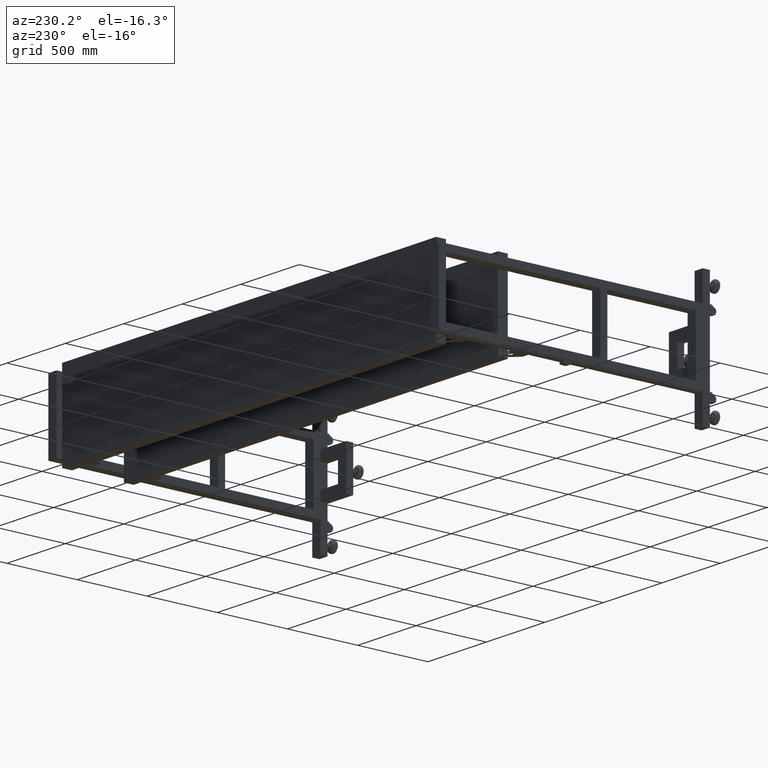
[diagram: clean part render]
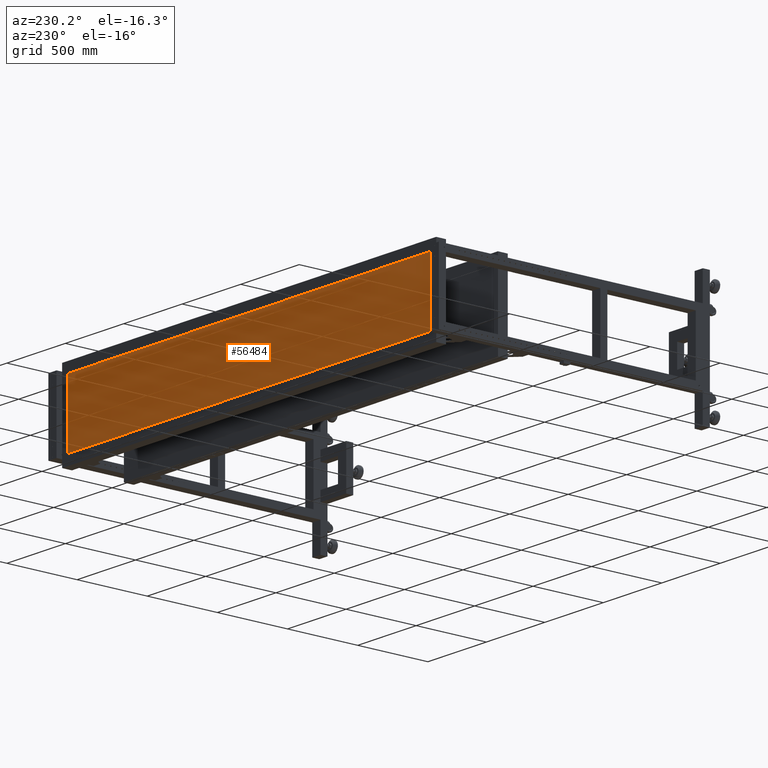
[diagram: same view with one face highlighted and labeled with its STEP entity id]
A machine part, auxiliary view. The second image highlights one B-rep face of the part: STEP entity #56484.
In plain terms, the highlighted planar face has unit normal (-0, 1, 0).
Its self-contained STEP definition (entity closure, byte-faithful):
#6050 = ORIENTED_EDGE ( 'NONE', *, *, #55783, .F. ) ;
#6225 = LINE ( 'NONE', #56981, #8064 ) ;
#8064 = VECTOR ( 'NONE', #13571, 1000.000000000000000 ) ;
#8396 = DIRECTION ( 'NONE',  ( -1.000000000000000000, -4.543257172554223644E-16, 0.000000000000000000 ) ) ;
#13216 = VECTOR ( 'NONE', #14175, 1000.000000000000000 ) ;
#13571 = DIRECTION ( 'NONE',  ( 0.000000000000000000, -1.000000000000000472E-15, 1.000000000000000000 ) ) ;
#14175 = DIRECTION ( 'NONE',  ( 4.543257172554225407E-31, -1.000000000000000472E-15, 1.000000000000000000 ) ) ;
#17271 = FACE_OUTER_BOUND ( 'NONE', #30572, .T. ) ;
#18692 = EDGE_CURVE ( 'NONE', #44897, #68761, #6225, .T. ) ;
#19060 = CARTESIAN_POINT ( 'NONE',  ( -516.6624874371854048, 996.9410804020130854, -228.4899999999988438 ) ) ;
#22365 = ORIENTED_EDGE ( 'NONE', *, *, #18692, .T. ) ;
#23031 = DIRECTION ( 'NONE',  ( -4.543257172554223644E-16, 1.000000000000000000, 1.000000000000000472E-15 ) ) ;
#25999 = LINE ( 'NONE', #50164, #51858 ) ;
#27658 = VERTEX_POINT ( 'NONE', #33924 ) ;
#30572 = EDGE_LOOP ( 'NONE', ( #60475, #22365, #40343, #6050 ) ) ;
#33924 = CARTESIAN_POINT ( 'NONE',  ( 1880.317512562814727, 996.9410804020142223, -228.4899999999988438 ) ) ;
#36084 = CARTESIAN_POINT ( 'NONE',  ( 681.8275125628146043, 996.9410804020134265, 1.167234175856414311E-12 ) ) ;
#37491 = CARTESIAN_POINT ( 'NONE',  ( 1880.317512562814727, 996.9410804020142223, -228.4899999999988438 ) ) ;
#40343 = ORIENTED_EDGE ( 'NONE', *, *, #64594, .F. ) ;
#40696 = CARTESIAN_POINT ( 'NONE',  ( -1216.662487437185973, 996.9410804020126307, 228.4900000000011744 ) ) ;
#41031 = DIRECTION ( 'NONE',  ( 4.543257172554225407E-31, -1.000000000000000472E-15, 1.000000000000000000 ) ) ;
#41609 = VECTOR ( 'NONE', #46307, 1000.000000000000000 ) ;
#44897 = VERTEX_POINT ( 'NONE', #80986 ) ;
#45289 = VERTEX_POINT ( 'NONE', #78482 ) ;
#45436 = EDGE_CURVE ( 'NONE', #44897, #27658, #75159, .T. ) ;
#46307 = DIRECTION ( 'NONE',  ( 1.000000000000000000, 4.543257172554223644E-16, 0.000000000000000000 ) ) ;
#50164 = CARTESIAN_POINT ( 'NONE',  ( 1880.317512562814727, 996.9410804020137675, 228.4900000000011744 ) ) ;
#51858 = VECTOR ( 'NONE', #8396, 1000.000000000000000 ) ;
#55783 = EDGE_CURVE ( 'NONE', #27658, #45289, #64107, .T. ) ;
#56484 = ADVANCED_FACE ( 'NONE', ( #17271 ), #61106, .T. ) ;
#56981 = CARTESIAN_POINT ( 'NONE',  ( -1216.662487437185973, 996.9410804020130854, -228.4899999999988438 ) ) ;
#60475 = ORIENTED_EDGE ( 'NONE', *, *, #45436, .F. ) ;
#61106 = PLANE ( 'NONE',  #78689 ) ;
#64107 = LINE ( 'NONE', #37491, #13216 ) ;
#64594 = EDGE_CURVE ( 'NONE', #45289, #68761, #25999, .T. ) ;
#68761 = VERTEX_POINT ( 'NONE', #40696 ) ;
#75159 = LINE ( 'NONE', #19060, #41609 ) ;
#78482 = CARTESIAN_POINT ( 'NONE',  ( 1880.317512562814727, 996.9410804020137675, 228.4900000000011744 ) ) ;
#78689 = AXIS2_PLACEMENT_3D ( 'NONE', #36084, #23031, #41031 ) ;
#80986 = CARTESIAN_POINT ( 'NONE',  ( -1216.662487437185973, 996.9410804020130854, -228.4899999999988438 ) ) ;